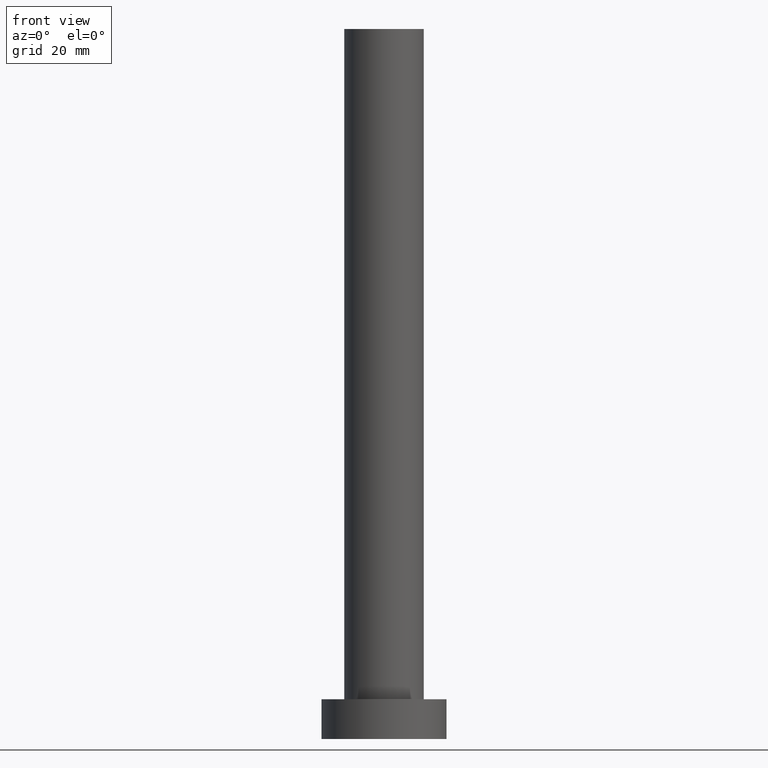
[diagram: clean part render]
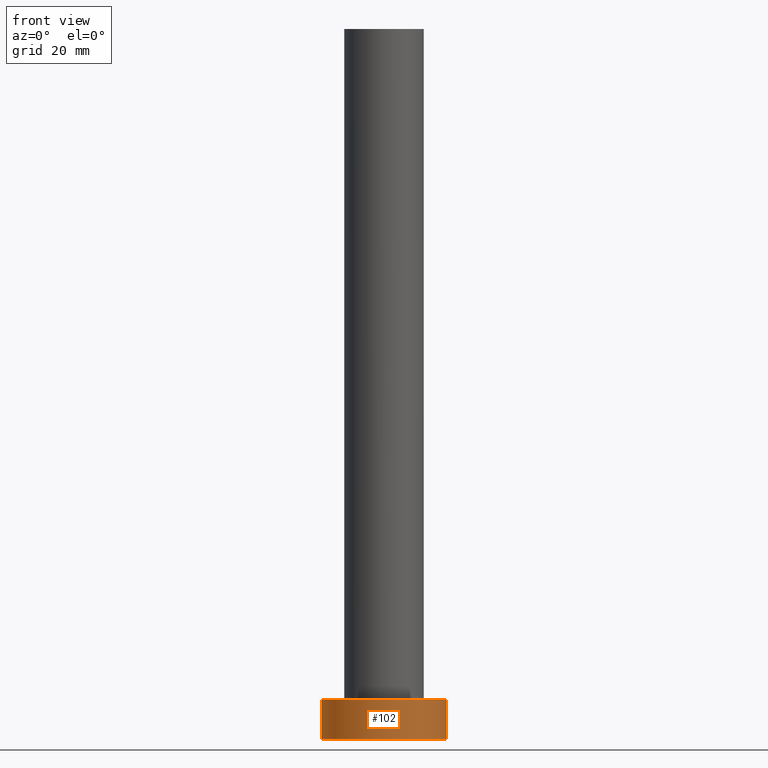
[diagram: same view with one face highlighted and labeled with its STEP entity id]
A machine part, front view. The second image highlights one B-rep face of the part: STEP entity #102.
In plain terms, the highlighted cylindrical surface (partial cylindrical patch) has radius 11 mm, axis along (-0, -0, -1).
Its self-contained STEP definition (entity closure, byte-faithful):
#2 = AXIS2_PLACEMENT_3D ( 'NONE', #162, #216, #44 ) ;
#6 = ORIENTED_EDGE ( 'NONE', *, *, #147, .F. ) ;
#11 = DIRECTION ( 'NONE',  ( 1.000000000000000000, 0.000000000000000000, 0.000000000000000000 ) ) ;
#16 = EDGE_LOOP ( 'NONE', ( #128, #6, #39, #183 ) ) ;
#19 = DIRECTION ( 'NONE',  ( -0.000000000000000000, -0.000000000000000000, -1.000000000000000000 ) ) ;
#39 = ORIENTED_EDGE ( 'NONE', *, *, #141, .T. ) ;
#43 = DIRECTION ( 'NONE',  ( 0.000000000000000000, 0.000000000000000000, 1.000000000000000000 ) ) ;
#44 = DIRECTION ( 'NONE',  ( -1.000000000000000000, 0.000000000000000000, 0.000000000000000000 ) ) ;
#50 = CIRCLE ( 'NONE', #171, 11.00000000000000000 ) ;
#57 = CARTESIAN_POINT ( 'NONE',  ( 11.00000000000000000, 1.347111479062088405E-15, 0.000000000000000000 ) ) ;
#60 = EDGE_CURVE ( 'NONE', #123, #133, #225, .T. ) ;
#62 = LINE ( 'NONE', #196, #180 ) ;
#81 = FACE_OUTER_BOUND ( 'NONE', #16, .T. ) ;
#95 = VERTEX_POINT ( 'NONE', #143 ) ;
#98 = CYLINDRICAL_SURFACE ( 'NONE', #2, 11.00000000000000000 ) ;
#101 = DIRECTION ( 'NONE',  ( 1.000000000000000000, 0.000000000000000000, 0.000000000000000000 ) ) ;
#102 = ADVANCED_FACE ( 'NONE', ( #81 ), #98, .T. ) ;
#113 = VECTOR ( 'NONE', #19, 1000.000000000000000 ) ;
#121 = AXIS2_PLACEMENT_3D ( 'NONE', #136, #43, #101 ) ;
#123 = VERTEX_POINT ( 'NONE', #146 ) ;
#128 = ORIENTED_EDGE ( 'NONE', *, *, #60, .F. ) ;
#133 = VERTEX_POINT ( 'NONE', #57 ) ;
#136 = CARTESIAN_POINT ( 'NONE',  ( 0.000000000000000000, 0.000000000000000000, 7.000000000000000000 ) ) ;
#137 = DIRECTION ( 'NONE',  ( 0.000000000000000000, 0.000000000000000000, 1.000000000000000000 ) ) ;
#141 = EDGE_CURVE ( 'NONE', #95, #153, #62, .T. ) ;
#143 = CARTESIAN_POINT ( 'NONE',  ( -11.00000000000000000, 0.000000000000000000, 7.000000000000000000 ) ) ;
#144 = CARTESIAN_POINT ( 'NONE',  ( -11.00000000000000000, 0.000000000000000000, 0.000000000000000000 ) ) ;
#146 = CARTESIAN_POINT ( 'NONE',  ( 11.00000000000000000, 1.347111479062088405E-15, 7.000000000000000000 ) ) ;
#147 = EDGE_CURVE ( 'NONE', #95, #123, #230, .T. ) ;
#153 = VERTEX_POINT ( 'NONE', #144 ) ;
#162 = CARTESIAN_POINT ( 'NONE',  ( 0.000000000000000000, 0.000000000000000000, 7.000000000000000000 ) ) ;
#171 = AXIS2_PLACEMENT_3D ( 'NONE', #193, #137, #11 ) ;
#176 = DIRECTION ( 'NONE',  ( -0.000000000000000000, -0.000000000000000000, -1.000000000000000000 ) ) ;
#180 = VECTOR ( 'NONE', #176, 1000.000000000000000 ) ;
#183 = ORIENTED_EDGE ( 'NONE', *, *, #237, .T. ) ;
#193 = CARTESIAN_POINT ( 'NONE',  ( 0.000000000000000000, 0.000000000000000000, 0.000000000000000000 ) ) ;
#196 = CARTESIAN_POINT ( 'NONE',  ( -11.00000000000000000, 0.000000000000000000, 7.000000000000000000 ) ) ;
#209 = CARTESIAN_POINT ( 'NONE',  ( 11.00000000000000000, 1.347111479062088405E-15, 7.000000000000000000 ) ) ;
#216 = DIRECTION ( 'NONE',  ( -0.000000000000000000, -0.000000000000000000, -1.000000000000000000 ) ) ;
#225 = LINE ( 'NONE', #209, #113 ) ;
#230 = CIRCLE ( 'NONE', #121, 11.00000000000000000 ) ;
#237 = EDGE_CURVE ( 'NONE', #153, #133, #50, .T. ) ;